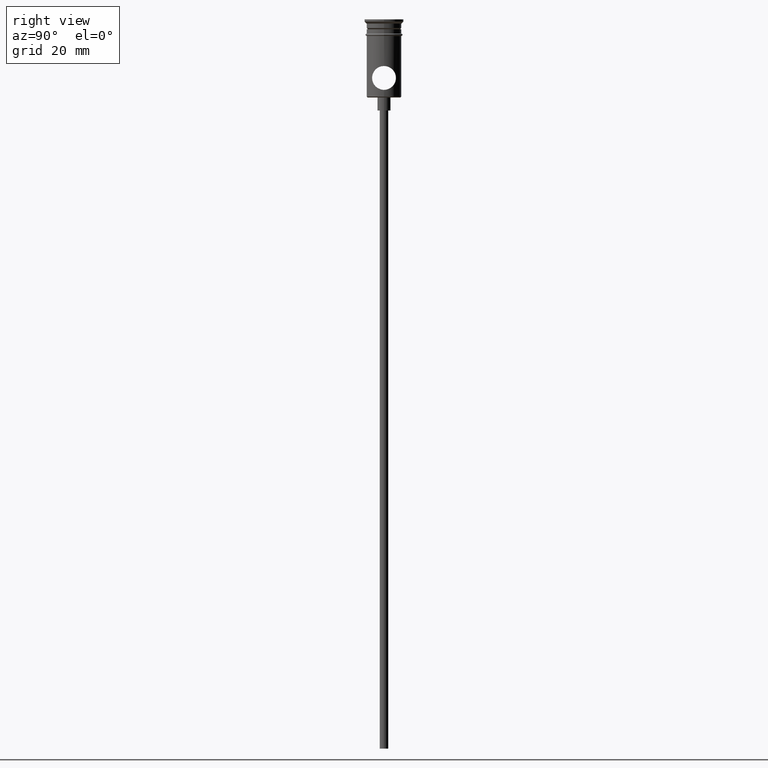
[diagram: clean part render]
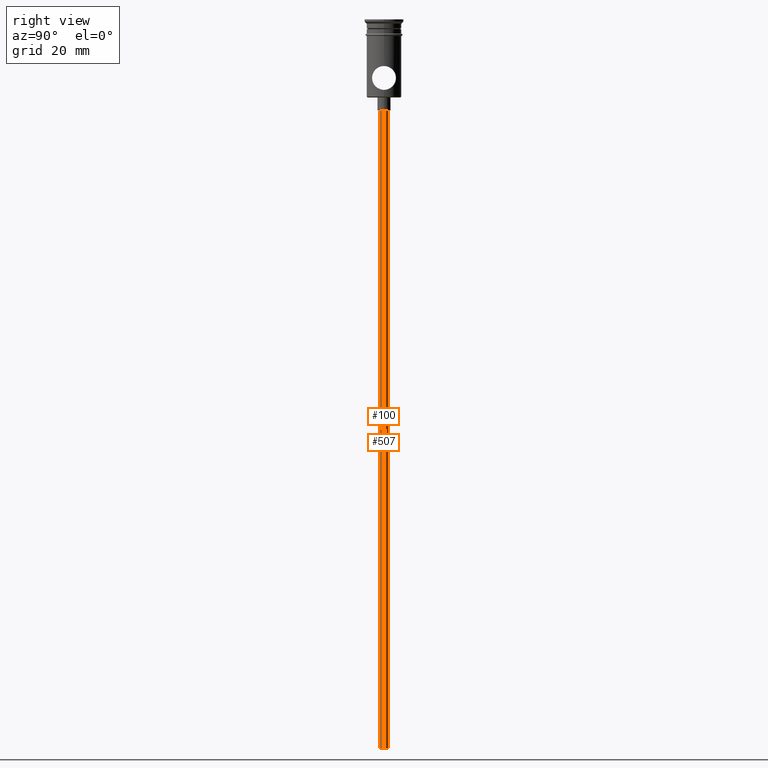
[diagram: same view with one multi-face feature highlighted, each face labeled with its STEP entity id]
A machine part, right view. The highlighted faces form ONE feature: a constant-radius fillet chain: 2 tangent blend faces with common blend radius 1 mm. The faces share edges in the B-rep.
Their STEP definitions:
[1] entity #507 (Cylinder):
#78 = ORIENTED_EDGE ( 'NONE', *, *, #1102, .F. ) ;
#83 = FACE_OUTER_BOUND ( 'NONE', #457, .T. ) ;
#107 = AXIS2_PLACEMENT_3D ( 'NONE', #1365, #1235, #826 ) ;
#150 = CARTESIAN_POINT ( 'NONE',  ( -0.9999999999999997780, 1.224646799147352961E-16, -167.9999999999999716 ) ) ;
#158 = CARTESIAN_POINT ( 'NONE',  ( 0.9999999999999997780, 0.000000000000000000, -167.9999999999999716 ) ) ;
#192 = DIRECTION ( 'NONE',  ( 1.000000000000000000, 0.000000000000000000, 0.000000000000000000 ) ) ;
#228 = VERTEX_POINT ( 'NONE', #293 ) ;
#255 = ORIENTED_EDGE ( 'NONE', *, *, #1256, .T. ) ;
#293 = CARTESIAN_POINT ( 'NONE',  ( -0.9999999999999997780, 1.224646799147352961E-16, -20.99999999999999645 ) ) ;
#321 = CIRCLE ( 'NONE', #1022, 0.9999999999999997780 ) ;
#327 = VERTEX_POINT ( 'NONE', #1159 ) ;
#457 = EDGE_LOOP ( 'NONE', ( #78, #1098, #255, #1272 ) ) ;
#507 = ADVANCED_FACE ( 'NONE', ( #83 ), #1381, .T. ) ;
#524 = CARTESIAN_POINT ( 'NONE',  ( 0.000000000000000000, 0.000000000000000000, -167.9999999999999716 ) ) ;
#731 = CIRCLE ( 'NONE', #107, 0.9999999999999997780 ) ;
#784 = VERTEX_POINT ( 'NONE', #929 ) ;
#823 = LINE ( 'NONE', #158, #1221 ) ;
#826 = DIRECTION ( 'NONE',  ( -1.000000000000000000, 0.000000000000000000, 0.000000000000000000 ) ) ;
#889 = DIRECTION ( 'NONE',  ( -0.000000000000000000, -0.000000000000000000, 1.000000000000000000 ) ) ;
#929 = CARTESIAN_POINT ( 'NONE',  ( 0.9999999999999997780, 0.000000000000000000, -20.99999999999999645 ) ) ;
#994 = DIRECTION ( 'NONE',  ( -1.000000000000000000, 0.000000000000000000, 0.000000000000000000 ) ) ;
#1014 = DIRECTION ( 'NONE',  ( 0.000000000000000000, 0.000000000000000000, -1.000000000000000000 ) ) ;
#1017 = AXIS2_PLACEMENT_3D ( 'NONE', #524, #1152, #192 ) ;
#1022 = AXIS2_PLACEMENT_3D ( 'NONE', #1199, #1014, #994 ) ;
#1086 = CARTESIAN_POINT ( 'NONE',  ( 0.9999999999999997780, 0.000000000000000000, -167.9999999999999716 ) ) ;
#1098 = ORIENTED_EDGE ( 'NONE', *, *, #1260, .T. ) ;
#1102 = EDGE_CURVE ( 'NONE', #327, #1408, #731, .T. ) ;
#1132 = DIRECTION ( 'NONE',  ( -0.000000000000000000, -0.000000000000000000, 1.000000000000000000 ) ) ;
#1152 = DIRECTION ( 'NONE',  ( -0.000000000000000000, -0.000000000000000000, 1.000000000000000000 ) ) ;
#1159 = CARTESIAN_POINT ( 'NONE',  ( -0.9999999999999997780, 1.224646799147352961E-16, -167.9999999999999716 ) ) ;
#1199 = CARTESIAN_POINT ( 'NONE',  ( 0.000000000000000000, 0.000000000000000000, -20.99999999999999645 ) ) ;
#1221 = VECTOR ( 'NONE', #1132, 1000.000000000000000 ) ;
#1235 = DIRECTION ( 'NONE',  ( 0.000000000000000000, 0.000000000000000000, -1.000000000000000000 ) ) ;
#1256 = EDGE_CURVE ( 'NONE', #228, #784, #321, .T. ) ;
#1260 = EDGE_CURVE ( 'NONE', #327, #228, #1312, .T. ) ;
#1272 = ORIENTED_EDGE ( 'NONE', *, *, #1368, .F. ) ;
#1297 = VECTOR ( 'NONE', #889, 1000.000000000000000 ) ;
#1312 = LINE ( 'NONE', #150, #1297 ) ;
#1365 = CARTESIAN_POINT ( 'NONE',  ( 0.000000000000000000, 0.000000000000000000, -167.9999999999999716 ) ) ;
#1368 = EDGE_CURVE ( 'NONE', #1408, #784, #823, .T. ) ;
#1381 = CYLINDRICAL_SURFACE ( 'NONE', #1017, 0.9999999999999997780 ) ;
#1408 = VERTEX_POINT ( 'NONE', #1086 ) ;
[2] entity #100 (Cylinder):
#31 = ORIENTED_EDGE ( 'NONE', *, *, #1368, .T. ) ;
#41 = DIRECTION ( 'NONE',  ( -1.000000000000000000, 0.000000000000000000, 0.000000000000000000 ) ) ;
#42 = EDGE_LOOP ( 'NONE', ( #975, #615, #31, #671 ) ) ;
#100 = ADVANCED_FACE ( 'NONE', ( #205 ), #1090, .T. ) ;
#150 = CARTESIAN_POINT ( 'NONE',  ( -0.9999999999999997780, 1.224646799147352961E-16, -167.9999999999999716 ) ) ;
#158 = CARTESIAN_POINT ( 'NONE',  ( 0.9999999999999997780, 0.000000000000000000, -167.9999999999999716 ) ) ;
#205 = FACE_OUTER_BOUND ( 'NONE', #42, .T. ) ;
#228 = VERTEX_POINT ( 'NONE', #293 ) ;
#263 = AXIS2_PLACEMENT_3D ( 'NONE', #1167, #445, #1291 ) ;
#293 = CARTESIAN_POINT ( 'NONE',  ( -0.9999999999999997780, 1.224646799147352961E-16, -20.99999999999999645 ) ) ;
#315 = DIRECTION ( 'NONE',  ( 0.000000000000000000, 0.000000000000000000, -1.000000000000000000 ) ) ;
#327 = VERTEX_POINT ( 'NONE', #1159 ) ;
#406 = AXIS2_PLACEMENT_3D ( 'NONE', #932, #1373, #41 ) ;
#445 = DIRECTION ( 'NONE',  ( -0.000000000000000000, -0.000000000000000000, 1.000000000000000000 ) ) ;
#615 = ORIENTED_EDGE ( 'NONE', *, *, #1347, .F. ) ;
#650 = CARTESIAN_POINT ( 'NONE',  ( 0.000000000000000000, 0.000000000000000000, -20.99999999999999645 ) ) ;
#658 = AXIS2_PLACEMENT_3D ( 'NONE', #650, #315, #989 ) ;
#671 = ORIENTED_EDGE ( 'NONE', *, *, #1140, .T. ) ;
#777 = CIRCLE ( 'NONE', #406, 0.9999999999999997780 ) ;
#784 = VERTEX_POINT ( 'NONE', #929 ) ;
#823 = LINE ( 'NONE', #158, #1221 ) ;
#889 = DIRECTION ( 'NONE',  ( -0.000000000000000000, -0.000000000000000000, 1.000000000000000000 ) ) ;
#929 = CARTESIAN_POINT ( 'NONE',  ( 0.9999999999999997780, 0.000000000000000000, -20.99999999999999645 ) ) ;
#932 = CARTESIAN_POINT ( 'NONE',  ( 0.000000000000000000, 0.000000000000000000, -167.9999999999999716 ) ) ;
#975 = ORIENTED_EDGE ( 'NONE', *, *, #1260, .F. ) ;
#989 = DIRECTION ( 'NONE',  ( -1.000000000000000000, 0.000000000000000000, 0.000000000000000000 ) ) ;
#1086 = CARTESIAN_POINT ( 'NONE',  ( 0.9999999999999997780, 0.000000000000000000, -167.9999999999999716 ) ) ;
#1090 = CYLINDRICAL_SURFACE ( 'NONE', #263, 0.9999999999999997780 ) ;
#1132 = DIRECTION ( 'NONE',  ( -0.000000000000000000, -0.000000000000000000, 1.000000000000000000 ) ) ;
#1140 = EDGE_CURVE ( 'NONE', #784, #228, #1274, .T. ) ;
#1159 = CARTESIAN_POINT ( 'NONE',  ( -0.9999999999999997780, 1.224646799147352961E-16, -167.9999999999999716 ) ) ;
#1167 = CARTESIAN_POINT ( 'NONE',  ( 0.000000000000000000, 0.000000000000000000, -167.9999999999999716 ) ) ;
#1221 = VECTOR ( 'NONE', #1132, 1000.000000000000000 ) ;
#1260 = EDGE_CURVE ( 'NONE', #327, #228, #1312, .T. ) ;
#1274 = CIRCLE ( 'NONE', #658, 0.9999999999999997780 ) ;
#1291 = DIRECTION ( 'NONE',  ( 1.000000000000000000, 0.000000000000000000, 0.000000000000000000 ) ) ;
#1297 = VECTOR ( 'NONE', #889, 1000.000000000000000 ) ;
#1312 = LINE ( 'NONE', #150, #1297 ) ;
#1347 = EDGE_CURVE ( 'NONE', #1408, #327, #777, .T. ) ;
#1368 = EDGE_CURVE ( 'NONE', #1408, #784, #823, .T. ) ;
#1373 = DIRECTION ( 'NONE',  ( 0.000000000000000000, 0.000000000000000000, -1.000000000000000000 ) ) ;
#1408 = VERTEX_POINT ( 'NONE', #1086 ) ;